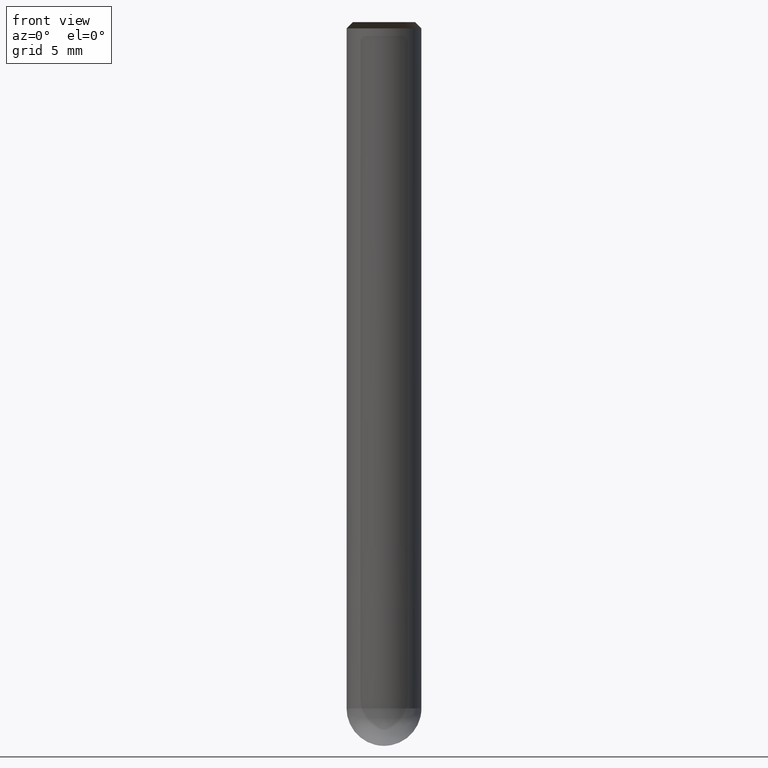
[diagram: clean part render]
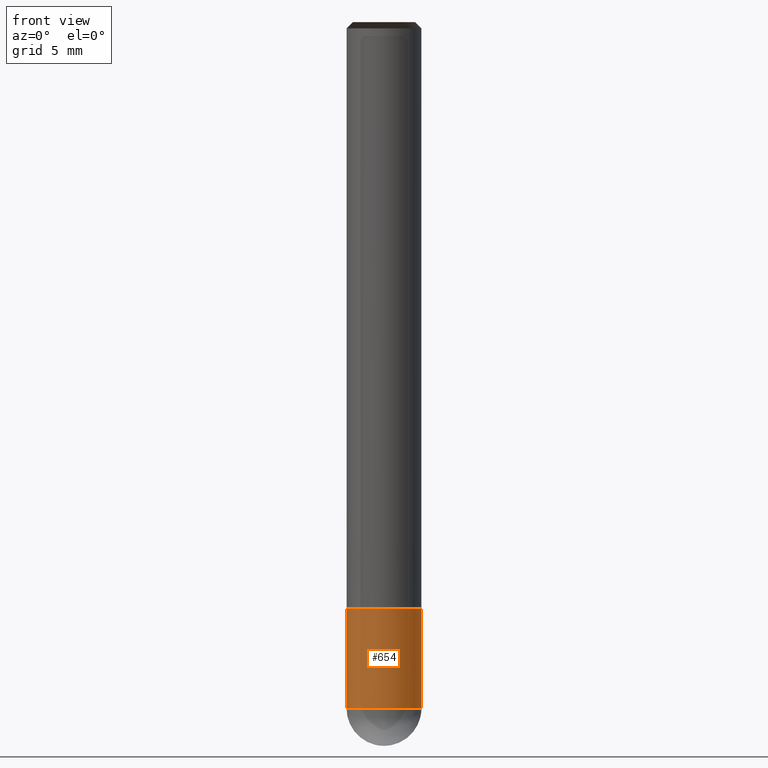
[diagram: same view with one face highlighted and labeled with its STEP entity id]
A machine part, front view. The second image highlights one B-rep face of the part: STEP entity #654.
In plain terms, the highlighted face is a freeform B-spline surface patch.
Its self-contained STEP definition (entity closure, byte-faithful):
#516=CARTESIAN_POINT('',(3.0,0.0,-13.0));
#520=CARTESIAN_POINT('',(-3.0,0.0,-13.0));
#521=CARTESIAN_POINT('',(3.0,0.0,-5.0));
#525=CARTESIAN_POINT('',(-3.0,0.0,-5.0));
#530=CARTESIAN_POINT('',(-3.0,-3.0,-13.0));
#531=CARTESIAN_POINT('',(0.0,-3.0,-13.0));
#532=CARTESIAN_POINT('',(3.0,-3.0,-13.0));
#533=CARTESIAN_POINT('',(-3.0,-3.0,-5.0));
#534=CARTESIAN_POINT('',(0.0,-3.0,-5.0));
#535=CARTESIAN_POINT('',(3.0,-3.0,-5.0));
#635=(
BOUNDED_SURFACE()
B_SPLINE_SURFACE(1,2,(
(#520,#530,#531,#532,#516),
(#525,#533,#534,#535,#521)
), .UNSPECIFIED.,.F.,.F.,.F.)
B_SPLINE_SURFACE_WITH_KNOTS((2,2),(3,2,3),(
0.0,1.0),(
0.0,0.5,1.0), .UNSPECIFIED.)
GEOMETRIC_REPRESENTATION_ITEM()
RATIONAL_B_SPLINE_SURFACE(((1.0,0.707106781187,1.0,0.707106781187,1.0),
(1.0,0.707106781187,1.0,0.707106781187,1.0)
))
REPRESENTATION_ITEM('')
SURFACE()
);
#636=(
BOUNDED_CURVE()
B_SPLINE_CURVE(2,(#516,#532,#531,#530,#520),.UNSPECIFIED.,.F.,.F.)
B_SPLINE_CURVE_WITH_KNOTS((3,2,3),
(0.0,0.5,1.0),.UNSPECIFIED.)
CURVE()
GEOMETRIC_REPRESENTATION_ITEM()
RATIONAL_B_SPLINE_CURVE((1.0,0.707106781187,1.0,0.707106781187,1.0))
REPRESENTATION_ITEM('')
);
#637=(
BOUNDED_CURVE()
B_SPLINE_CURVE(1,(#520,#525),.UNSPECIFIED.,.F.,.F.)
B_SPLINE_CURVE_WITH_KNOTS((2,2),
(0.0,1.0),.UNSPECIFIED.)
CURVE()
GEOMETRIC_REPRESENTATION_ITEM()
RATIONAL_B_SPLINE_CURVE((1.0,1.0))
REPRESENTATION_ITEM('')
);
#638=(
BOUNDED_CURVE()
B_SPLINE_CURVE(2,(#525,#533,#534,#535,#521),.UNSPECIFIED.,.F.,.F.)
B_SPLINE_CURVE_WITH_KNOTS((3,2,3),
(0.0,0.5,1.0),.UNSPECIFIED.)
CURVE()
GEOMETRIC_REPRESENTATION_ITEM()
RATIONAL_B_SPLINE_CURVE((1.0,0.707106781187,1.0,0.707106781187,1.0))
REPRESENTATION_ITEM('')
);
#639=(
BOUNDED_CURVE()
B_SPLINE_CURVE(1,(#521,#516),.UNSPECIFIED.,.F.,.F.)
B_SPLINE_CURVE_WITH_KNOTS((2,2),
(0.0,1.0),.UNSPECIFIED.)
CURVE()
GEOMETRIC_REPRESENTATION_ITEM()
RATIONAL_B_SPLINE_CURVE((1.0,1.0))
REPRESENTATION_ITEM('')
);
#640=VERTEX_POINT('',#516);
#641=VERTEX_POINT('',#520);
#642=VERTEX_POINT('',#521);
#643=VERTEX_POINT('',#525);
#644=EDGE_CURVE('',#640,#641,#636,.T.);
#645=EDGE_CURVE('',#641,#643,#637,.T.);
#646=EDGE_CURVE('',#643,#642,#638,.T.);
#647=EDGE_CURVE('',#642,#640,#639,.T.);
#648=ORIENTED_EDGE('',*,*,#644,.T.);
#649=ORIENTED_EDGE('',*,*,#645,.T.);
#650=ORIENTED_EDGE('',*,*,#646,.T.);
#651=ORIENTED_EDGE('',*,*,#647,.T.);
#652=EDGE_LOOP('',(#648,#649,#650,#651));
#653=FACE_OUTER_BOUND('',#652,.T.);
#654=ADVANCED_FACE('',(#653),#635,.T.);